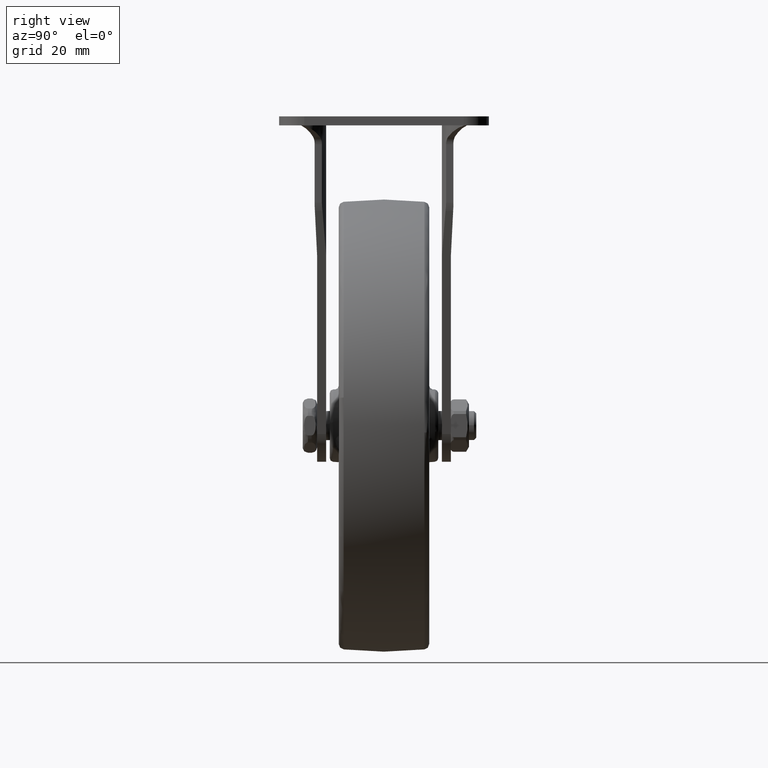
[diagram: clean part render]
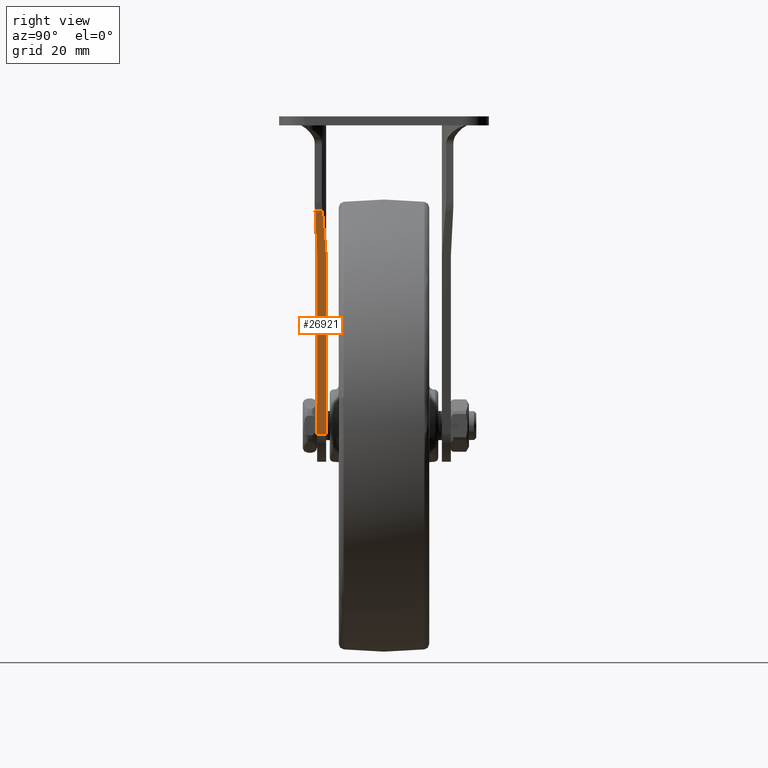
[diagram: same view with one face highlighted and labeled with its STEP entity id]
A machine part, right view. The second image highlights one B-rep face of the part: STEP entity #26921.
In plain terms, the highlighted face is a freeform B-spline surface patch.
Its self-contained STEP definition (entity closure, byte-faithful):
#26703=CARTESIAN_POINT('',(24.524012235281202,-19.057416715549198,59.349790253814902));
#26704=VERTEX_POINT('',#26703);
#26714=CARTESIAN_POINT('',(24.524012235281202,-17.010712255482499,59.349790253814902));
#26715=VERTEX_POINT('',#26714);
#26716=CARTESIAN_POINT('',(24.524012235281202,-19.057416715549198,59.349790253814902));
#26717=CARTESIAN_POINT('',(24.524012235281202,-17.010712255482499,59.349790253814902));
#26718=QUASI_UNIFORM_CURVE('',1,(#26716,#26717),.UNSPECIFIED.,.F.,.U.);
#26719=EDGE_CURVE('',#26704,#26715,#26718,.T.);
#26864=CARTESIAN_POINT('',(8.984746185366738,-19.210134904171738,-5.414178239703031));
#26865=CARTESIAN_POINT('',(25.263271783805038,-19.210134904171738,62.430848391010102));
#26866=CARTESIAN_POINT('',(8.984746185366738,-15.847281948054640,-5.414178239703031));
#26867=CARTESIAN_POINT('',(25.263271783805038,-15.847281948054640,62.430848391010102));
#26868=B_SPLINE_SURFACE_WITH_KNOTS('',1,1,((#26864,#26866),(#26865,#26867)),.UNSPECIFIED.,.F.,.F.,.U.,(2,2),(2,2),(0.0,69.770610103260410),(0.0,3.362852956117104),.UNSPECIFIED.);
#26869=CARTESIAN_POINT('',(21.590029581121051,-18.499980000000001,47.121647717082702));
#26870=VERTEX_POINT('',#26869);
#26871=CARTESIAN_POINT('',(24.524012235281202,-19.057416715549198,59.349790253814902));
#26872=CARTESIAN_POINT('',(23.109975512010866,-18.499979999999990,53.456421191183885));
#26873=CARTESIAN_POINT('',(21.590029581121051,-18.499980000000001,47.121647717082702));
#26881=(BOUNDED_CURVE()B_SPLINE_CURVE(2,(#26871,#26872,#26873),.UNSPECIFIED.,.F.,.U.)CURVE()GEOMETRIC_REPRESENTATION_ITEM()QUASI_UNIFORM_CURVE()RATIONAL_B_SPLINE_CURVE((1.0,0.982425674174985,1.0))REPRESENTATION_ITEM(''));
#26882=EDGE_CURVE('',#26704,#26870,#26881,.T.);
#26883=ORIENTED_EDGE('',*,*,#26882,.T.);
#26884=CARTESIAN_POINT('',(9.724006395502389,-18.499980000000001,-2.333117345066995));
#26885=VERTEX_POINT('',#26884);
#26886=CARTESIAN_POINT('',(9.724006395502389,-18.499980000000001,-2.333117345066995));
#26887=CARTESIAN_POINT('',(21.590029581121051,-18.499980000000001,47.121647717082702));
#26888=QUASI_UNIFORM_CURVE('',1,(#26886,#26887),.UNSPECIFIED.,.F.,.U.);
#26889=EDGE_CURVE('',#26885,#26870,#26888,.T.);
#26890=ORIENTED_EDGE('',*,*,#26889,.F.);
#26891=CARTESIAN_POINT('',(9.724006395502389,-16.0,-2.333117345066995));
#26892=VERTEX_POINT('',#26891);
#26893=CARTESIAN_POINT('',(9.724006395502389,-18.499980000000001,-2.333117345066995));
#26894=CARTESIAN_POINT('',(9.724006395502389,-16.0,-2.333117345066995));
#26895=QUASI_UNIFORM_CURVE('',1,(#26893,#26894),.UNSPECIFIED.,.F.,.U.);
#26896=EDGE_CURVE('',#26885,#26892,#26895,.T.);
#26897=ORIENTED_EDGE('',*,*,#26896,.T.);
#26898=CARTESIAN_POINT('',(21.590155530322349,-16.0,47.122172643425998));
#26899=VERTEX_POINT('',#26898);
#26900=CARTESIAN_POINT('',(9.724006395502389,-16.0,-2.333117345066995));
#26901=CARTESIAN_POINT('',(21.590155530322349,-16.0,47.122172643425998));
#26902=QUASI_UNIFORM_CURVE('',1,(#26900,#26901),.UNSPECIFIED.,.F.,.U.);
#26903=EDGE_CURVE('',#26892,#26899,#26902,.T.);
#26904=ORIENTED_EDGE('',*,*,#26903,.T.);
#26905=CARTESIAN_POINT('',(21.590155530322349,-16.0,47.122172643425998));
#26906=CARTESIAN_POINT('',(23.145434751655582,-16.248894619958442,53.604206876285041));
#26907=CARTESIAN_POINT('',(24.524012235281202,-17.010712255482510,59.349790253814902));
#26915=(BOUNDED_CURVE()B_SPLINE_CURVE(2,(#26905,#26906,#26907),.UNSPECIFIED.,.F.,.U.)CURVE()GEOMETRIC_REPRESENTATION_ITEM()QUASI_UNIFORM_CURVE()RATIONAL_B_SPLINE_CURVE((1.0,0.985059067988192,1.0))REPRESENTATION_ITEM(''));
#26916=EDGE_CURVE('',#26899,#26715,#26915,.T.);
#26917=ORIENTED_EDGE('',*,*,#26916,.T.);
#26918=ORIENTED_EDGE('',*,*,#26719,.F.);
#26919=EDGE_LOOP('',(#26883,#26890,#26897,#26904,#26917,#26918));
#26920=FACE_OUTER_BOUND('',#26919,.T.);
#26921=ADVANCED_FACE('',(#26920),#26868,.F.);